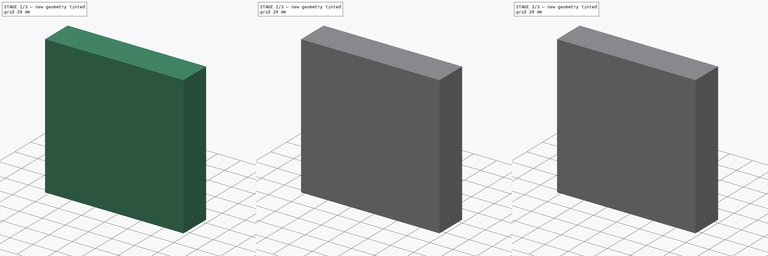
[diagram: build sequence overview — one tinted view per stage of 3, left to right]
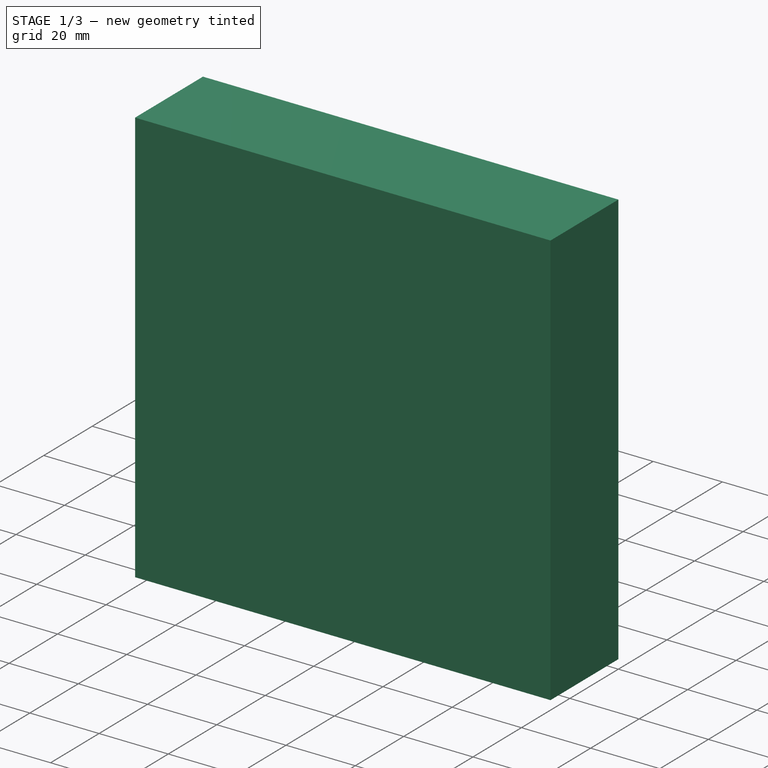
[diagram: stage 1 of 3 — iso view after this stage's code; geometry added in this stage tinted green]
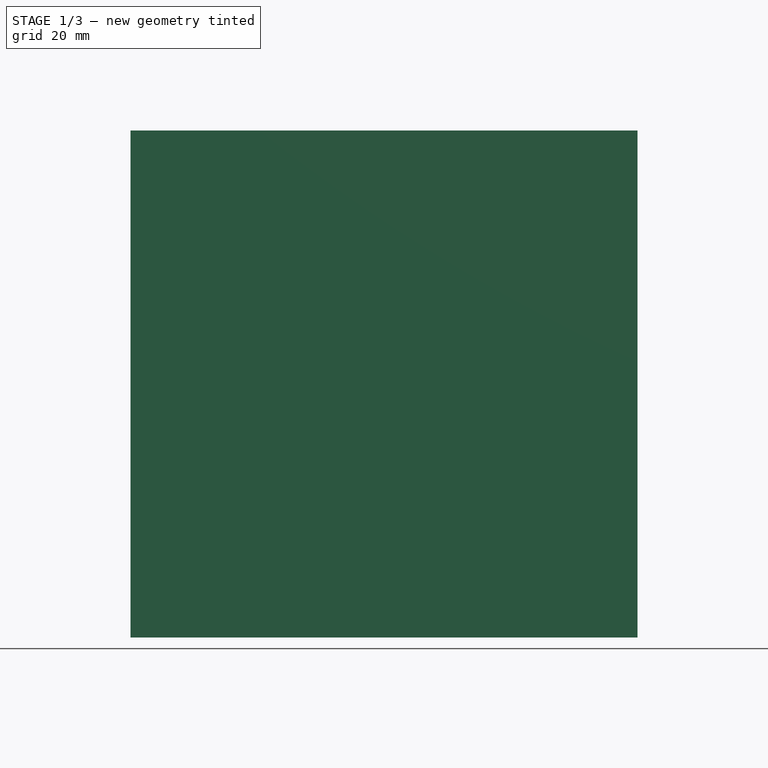
[diagram: stage 1 of 3 — front view after this stage's code; geometry added in this stage tinted green]
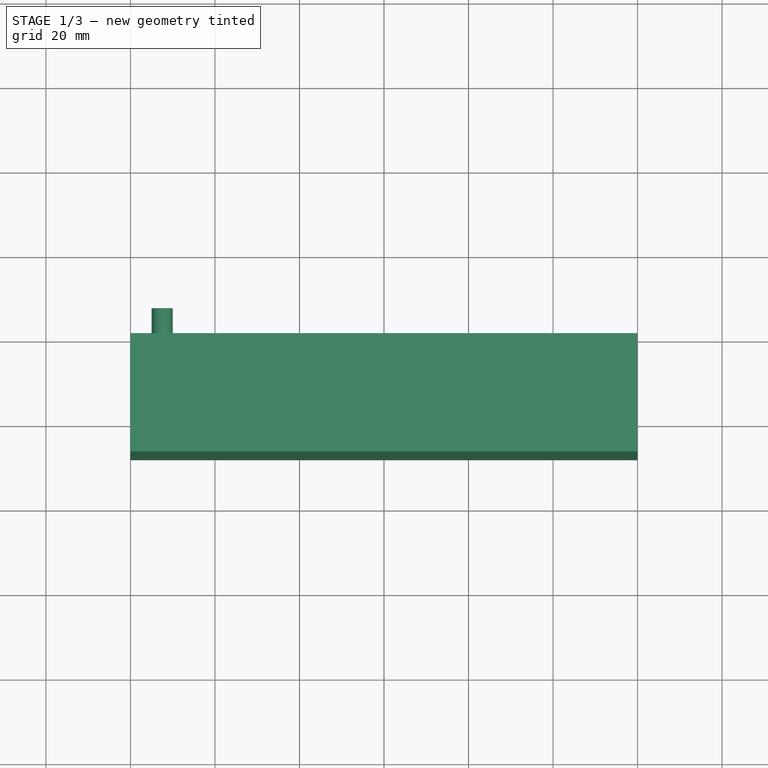
[diagram: stage 1 of 3 — top view after this stage's code; geometry added in this stage tinted green]
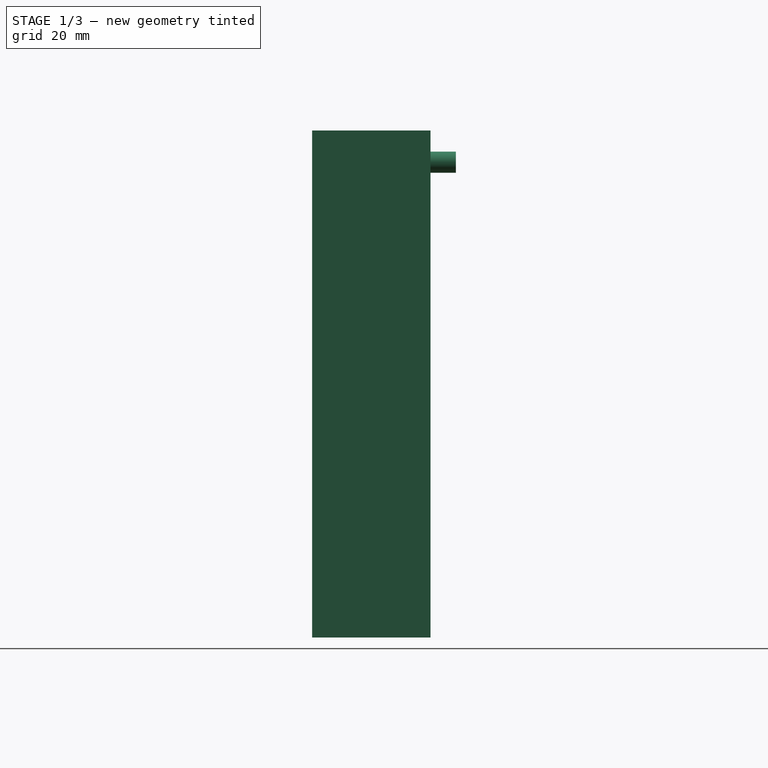
[diagram: stage 1 of 3 — right view after this stage's code; geometry added in this stage tinted green]
FCSTD DOCUMENT  (FreeCAD 0.19R24291 (Git))
Label: 120mmfan
License: All rights reserved
LicenseURL: http://en.wikipedia.org/wiki/All_rights_reserved
objects: PartDesign::AdditiveCylinder×4, Sketcher::SketchObject×1, PartDesign::Pad×1, PartDesign::Body×1
note: 12 computed .brp shape members not serialized (recipe doc carries the construction recipe); baked Part::Feature solids carry a one-line shape summary decoded from their .brp

FEATURE [Sketcher::SketchObject] Sketch
  FullyConstrained = false
  MapMode = 5
  Placement = pos=(0,0,0) rot=(1,0,0;1.5708rad)
  Support = -> [XZ_Plane]
  sketch-geometry (5):
    g0: LineSegment StartX=-60 StartY=0 StartZ=0 EndX=-60 EndY=-60 EndZ=0
    g1: LineSegment StartX=-60 StartY=-60 StartZ=0 EndX=60 EndY=-60 EndZ=0
    g2: LineSegment StartX=60 StartY=-60 StartZ=0 EndX=60 EndY=60 EndZ=0
    g3: LineSegment StartX=60 StartY=60 StartZ=0 EndX=-60 EndY=60 EndZ=0
    g4: LineSegment StartX=-60 StartY=60 StartZ=0 EndX=-60 EndY=0 EndZ=0
  constraints (11):
    c: PointOnObject(g0,g-1)
    c: Vertical(g0)
    c: Coincident(g1,g0)
    c: Horizontal(g1)
    c: Coincident(g2,g1)
    c: Vertical(g2)
    c: Coincident(g3,g2)
    c: Horizontal(g3)
    c: Coincident(g4,g3)
    c: Coincident(g4,g0)
    c: Vertical(g4)
FEATURE [PartDesign::Pad] Pad
  Direction = (1,1,1)
  Length = 28
  Length2 = 100
  Placement = pos=(0,0,0) rot=(1,0,0;1.5708rad)
  Profile = -> Sketch
  Refine = true
  Type = 0
FEATURE [PartDesign::AdditiveCylinder] Cylinder  label="topleftscrew"
  Angle = 360
  AttacherType = Attacher::AttachEngine3D
  AttachmentOffset = pos=(-52.5,52.5,-34) rot=(0,0,1;0rad)
  BaseFeature = -> Pad
  Height = 6
  MapMode = 5
  Placement = pos=(-52.5,6,52.5) rot=(1,0,0;1.5708rad)
  Radius = 2.5
  Refine = true
  Support = -> [Pad]
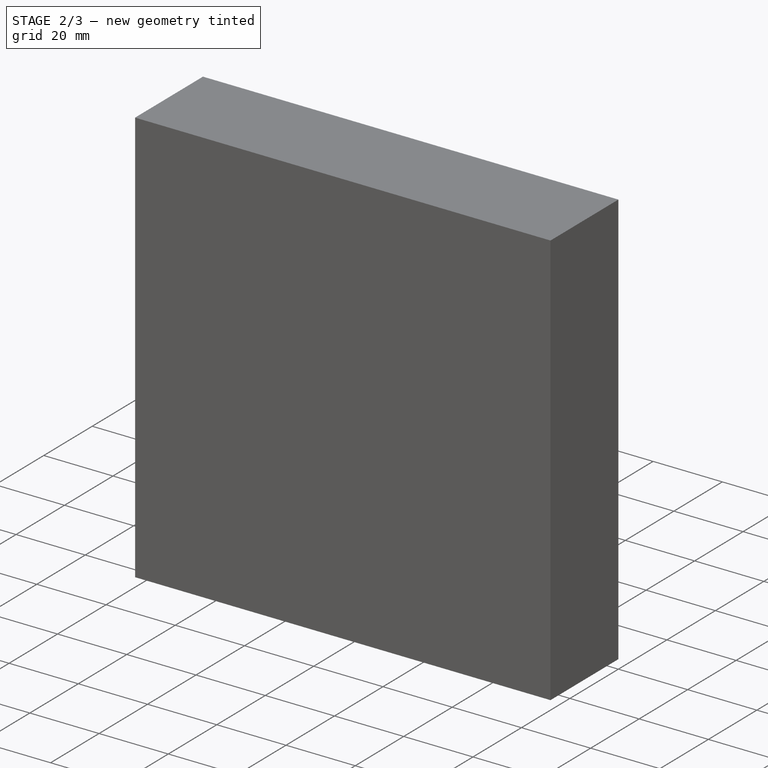
[diagram: stage 2 of 3 — iso view after this stage's code; geometry added in this stage tinted green]
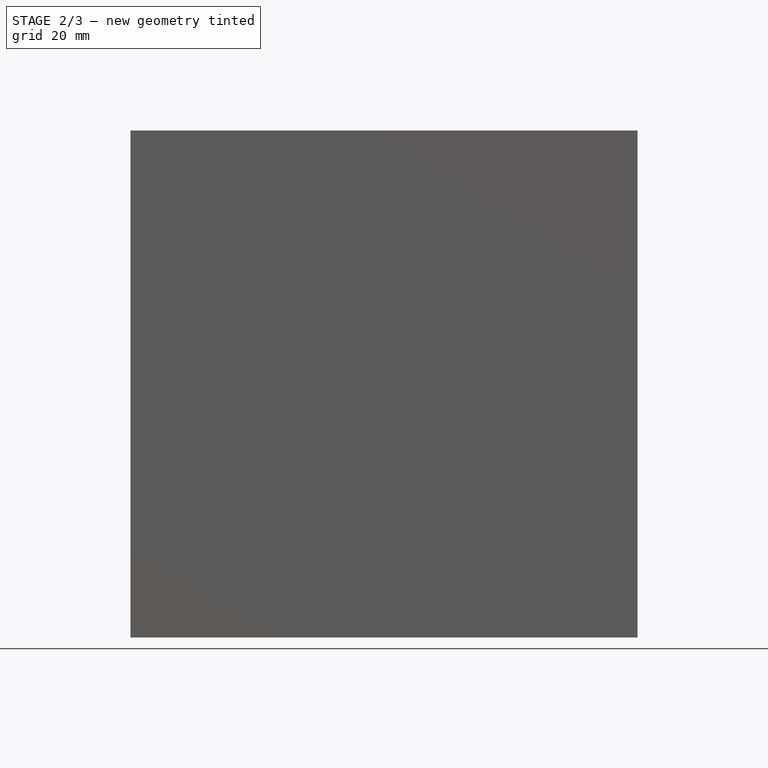
[diagram: stage 2 of 3 — front view after this stage's code; geometry added in this stage tinted green]
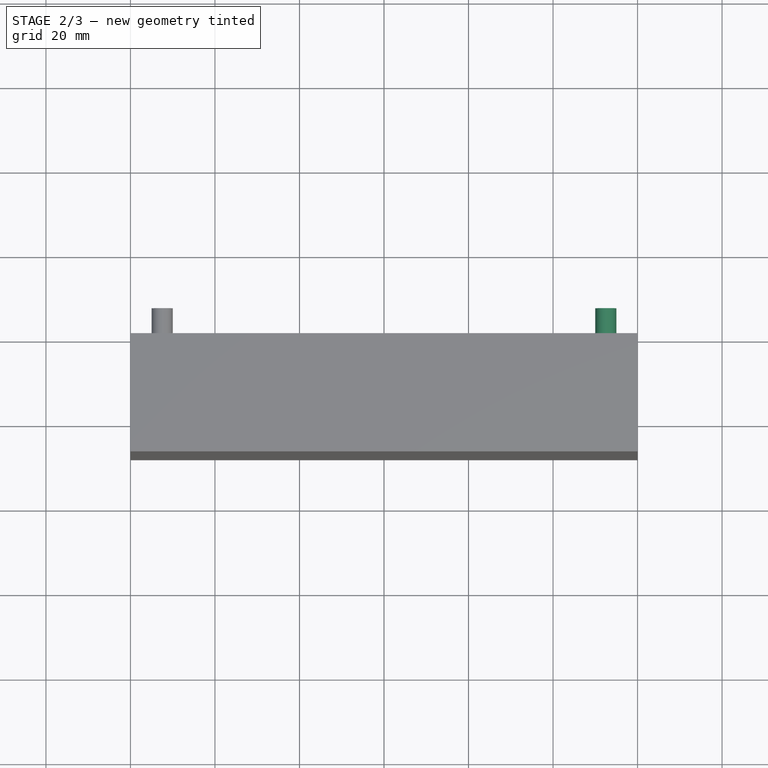
[diagram: stage 2 of 3 — top view after this stage's code; geometry added in this stage tinted green]
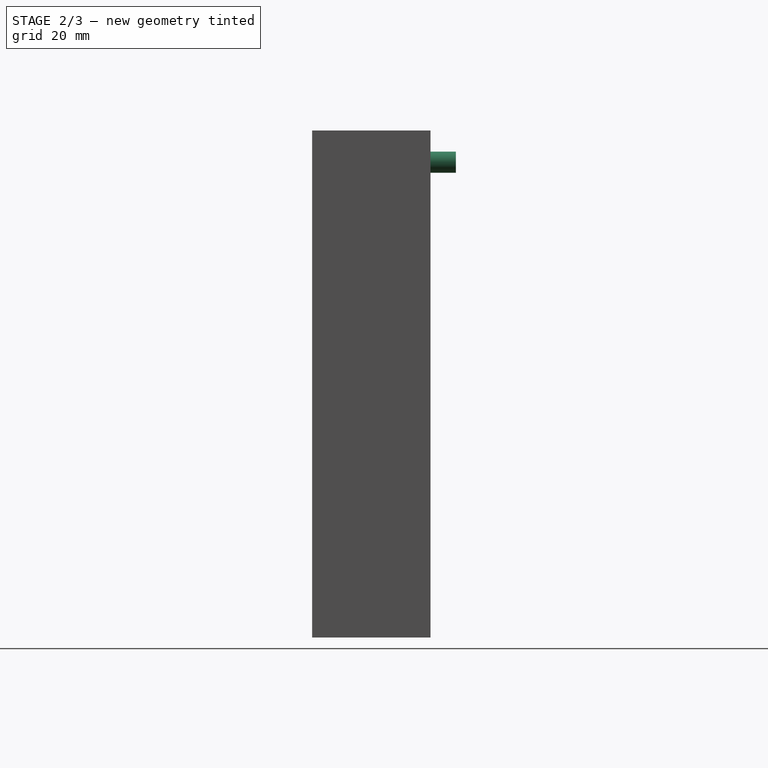
[diagram: stage 2 of 3 — right view after this stage's code; geometry added in this stage tinted green]
FEATURE [PartDesign::AdditiveCylinder] Cylinder001  label="toprightscrew"
  Angle = 360
  AttacherType = Attacher::AttachEngine3D
  AttachmentOffset = pos=(105,0,-34) rot=(0,0,1;0rad)
  BaseFeature = -> Cylinder
  Height = 6
  MapMode = 5
  Placement = pos=(52.5,6,52.5) rot=(1,0,0;1.5708rad)
  Radius = 2.5
  Refine = true
  Support = -> [Cylinder]
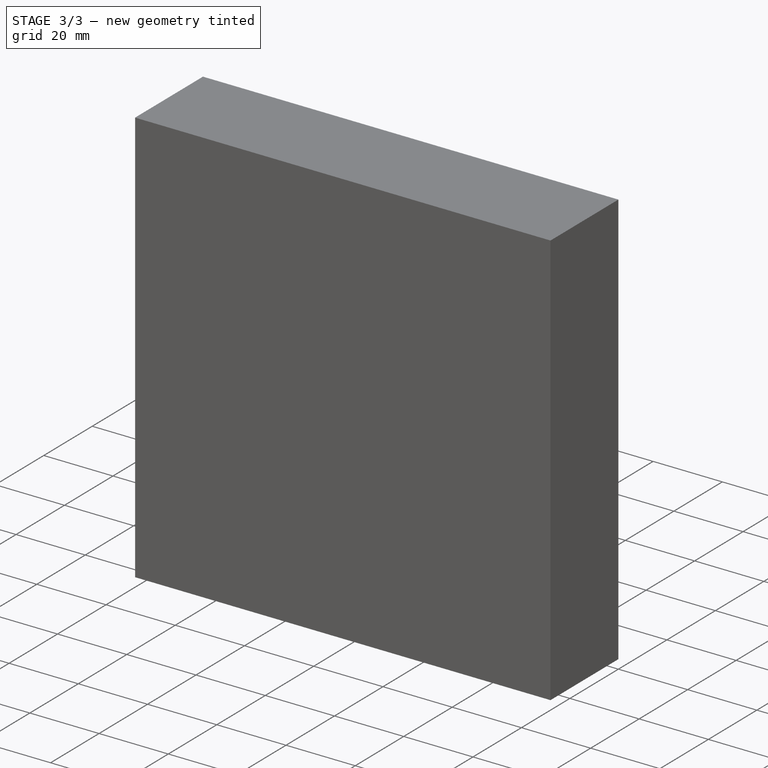
[diagram: stage 3 of 3 — iso view after this stage's code; geometry added in this stage tinted green]
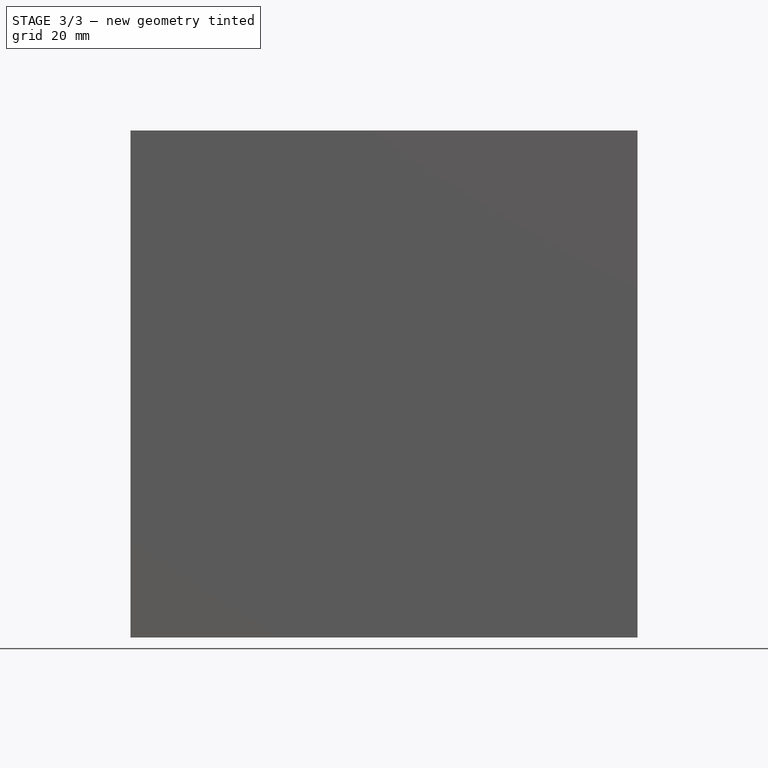
[diagram: stage 3 of 3 — front view after this stage's code; geometry added in this stage tinted green]
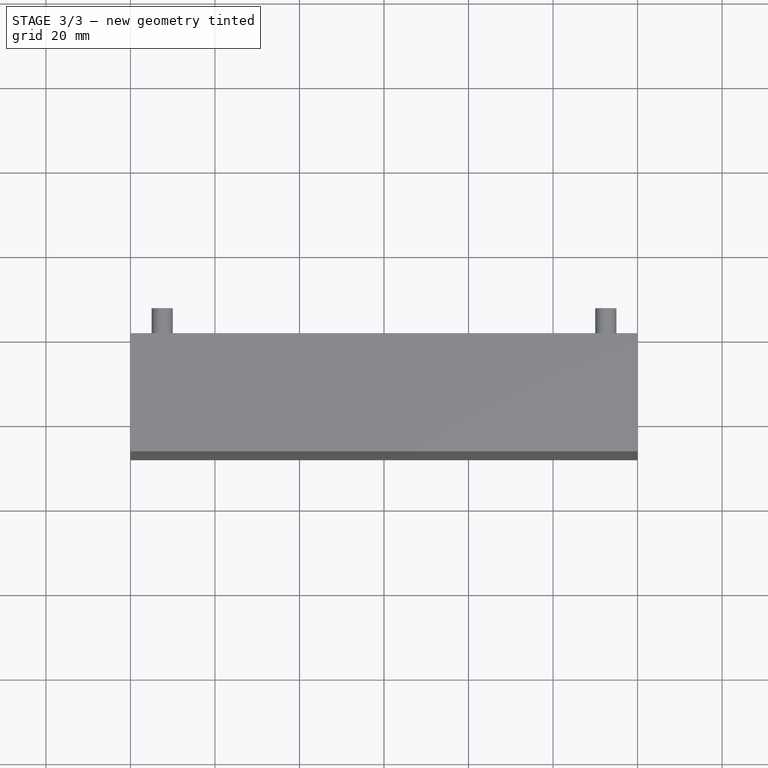
[diagram: stage 3 of 3 — top view after this stage's code; geometry added in this stage tinted green]
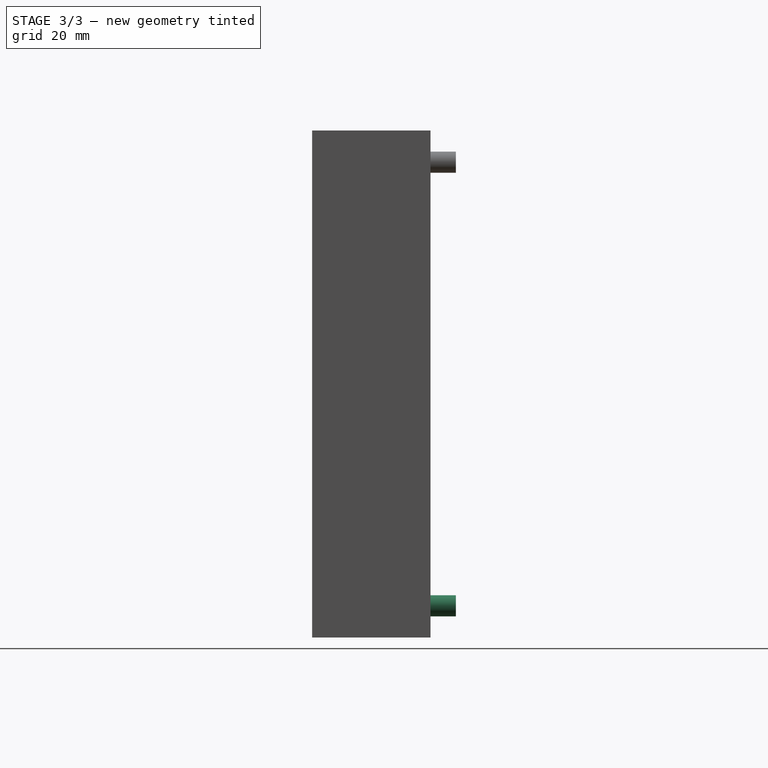
[diagram: stage 3 of 3 — right view after this stage's code; geometry added in this stage tinted green]
FEATURE [PartDesign::AdditiveCylinder] Cylinder002  label="botrightscrew"
  Angle = 360
  AttacherType = Attacher::AttachEngine3D
  AttachmentOffset = pos=(0,-105,-34) rot=(0,0,1;0rad)
  BaseFeature = -> Cylinder001
  Height = 6
  MapMode = 5
  Placement = pos=(52.5,6,-52.5) rot=(1,0,0;1.5708rad)
  Radius = 2.5
  Refine = true
  Support = -> [Cylinder001]
FEATURE [PartDesign::AdditiveCylinder] Cylinder003  label="botleftscrew"
  Angle = 360
  AttacherType = Attacher::AttachEngine3D
  AttachmentOffset = pos=(-105,0,-34) rot=(0,0,1;0rad)
  BaseFeature = -> Cylinder002
  Height = 6
  MapMode = 5
  Placement = pos=(-52.5,6,-52.5) rot=(1,0,0;1.5708rad)
  Radius = 2.5
  Refine = true
  Support = -> [Cylinder002]
FEATURE [PartDesign::Body] Body
  Group = -> [Sketch,Pad,Cylinder,Cylinder001,Cylinder002,Cylinder003]
  Origin = -> Origin
  Tip = -> Cylinder003
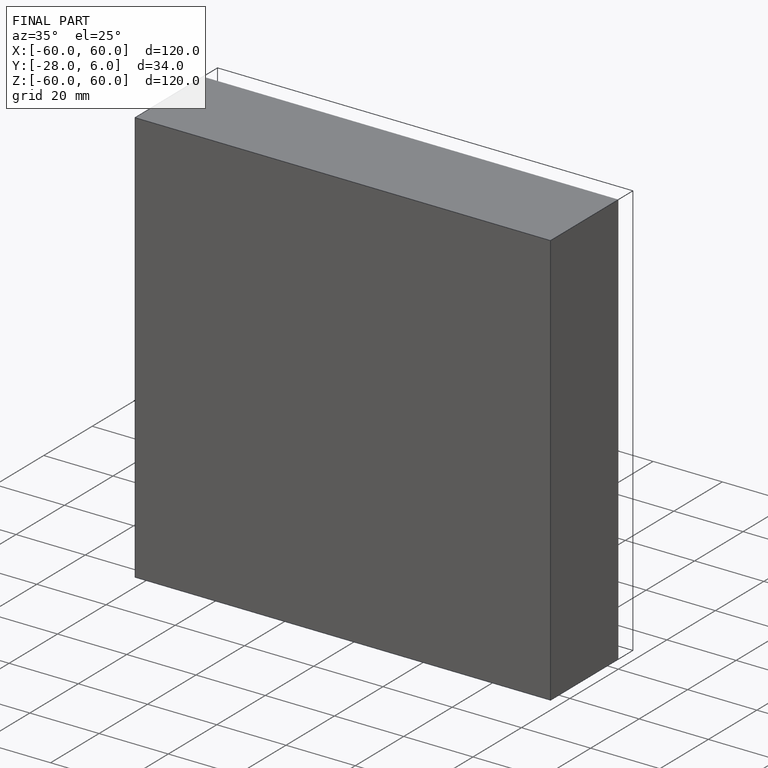
[diagram: finished part — iso view with bounding-box wireframe]
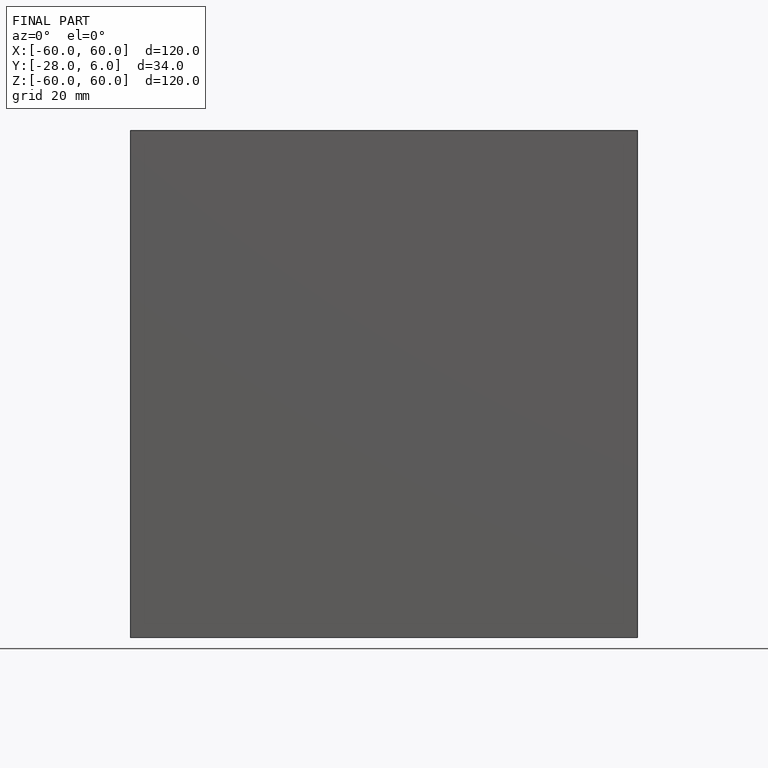
[diagram: finished part — front view with bounding-box wireframe]
